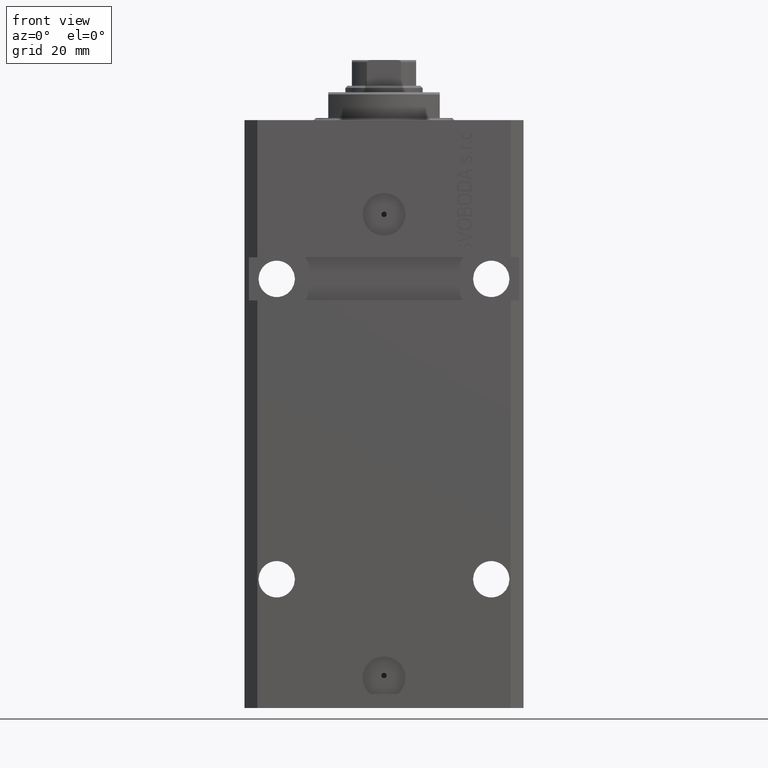
[diagram: clean part render]
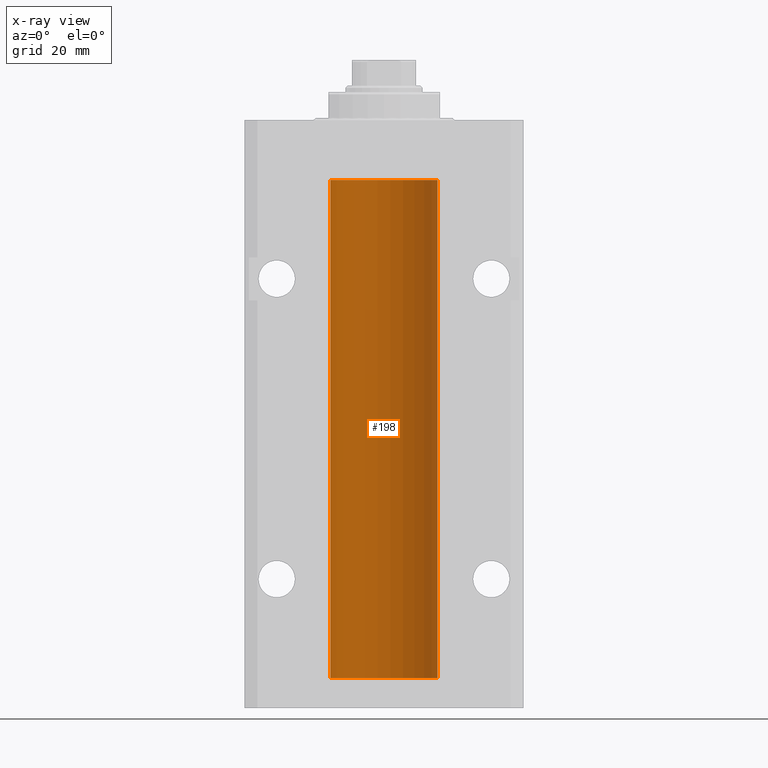
[diagram: x-ray — body ghosted, one internal face saturated and labeled with its STEP entity id]
A machine part, front view, then the same camera in x-ray: the body is ghosted and one INTERNAL B-rep face — a face not visible from any outside direction — is saturated and labeled: STEP entity #198.
In plain terms, the highlighted cylindrical surface (partial cylindrical patch) has radius 12.5 mm, axis along (0, 0, 1).
Its self-contained STEP definition (entity closure, byte-faithful):
#5 = CARTESIAN_POINT ( 'NONE',  ( 12.50000000000000000, -1.470318446642941360E-15, -22.62500000000000000 ) ) ;
#198 = ADVANCED_FACE ( 'NONE', ( #6030 ), #9700, .F. ) ;
#203 = CARTESIAN_POINT ( 'NONE',  ( -12.49915784441386890, 0.1636601911727947889, -21.39126818989430490 ) ) ;
#446 = CARTESIAN_POINT ( 'NONE',  ( 12.50000000000000000, 5.055633433180616021E-15, -125.6250000000000142 ) ) ;
#631 = CARTESIAN_POINT ( 'NONE',  ( 12.50000000000017941, 3.868073647803008074E-13, -124.3749999999964047 ) ) ;
#669 = VERTEX_POINT ( 'NONE', #446 ) ;
#1298 = CARTESIAN_POINT ( 'NONE',  ( 12.48436522214885969, 0.6250000000001448841, -22.16312747540307271 ) ) ;
#1752 = CARTESIAN_POINT ( 'NONE',  ( 12.50000000000000000, -1.470318446642941360E-15, -22.62500000000000000 ) ) ;
#2138 = DIRECTION ( 'NONE',  ( 1.000000000000000000, 0.000000000000000000, 0.000000000000000000 ) ) ;
#2431 = CARTESIAN_POINT ( 'NONE',  ( -12.48809959379011758, 0.5462151254764870956, -125.3146137048161677 ) ) ;
#2727 = LINE ( 'NONE', #41349, #6343 ) ;
#2816 = LINE ( 'NONE', #12716, #43009 ) ;
#2906 = CARTESIAN_POINT ( 'NONE',  ( 12.49012055744648997, 0.5002956126655976332, -21.61641710202404454 ) ) ;
#3228 = EDGE_CURVE ( 'NONE', #36668, #40952, #19614, .T. ) ;
#3335 = CARTESIAN_POINT ( 'NONE',  ( -12.48436376893640265, 0.6250290278979852010, -125.0813208282447135 ) ) ;
#3654 = CARTESIAN_POINT ( 'NONE',  ( -12.48520330846397819, 0.6088355886774127201, -22.16325431852561323 ) ) ;
#3757 = CARTESIAN_POINT ( 'NONE',  ( 12.48436522214846711, 0.6250000000078859141, -124.9999999999992326 ) ) ;
#3878 = LINE ( 'NONE', #21578, #33612 ) ;
#4104 = DIRECTION ( 'NONE',  ( -0.000000000000000000, -0.000000000000000000, 1.000000000000000000 ) ) ;
#4451 = DIRECTION ( 'NONE',  ( -0.000000000000000000, -0.000000000000000000, 1.000000000000000000 ) ) ;
#5886 = CARTESIAN_POINT ( 'NONE',  ( -12.48436813453758631, 0.6249418250771061611, -124.8366899679892441 ) ) ;
#6030 = FACE_OUTER_BOUND ( 'NONE', #15748, .T. ) ;
#6043 = ORIENTED_EDGE ( 'NONE', *, *, #42141, .T. ) ;
#6343 = VECTOR ( 'NONE', #34677, 1000.000000000000000 ) ;
#6797 = ORIENTED_EDGE ( 'NONE', *, *, #3228, .F. ) ;
#7234 = VECTOR ( 'NONE', #18365, 1000.000000000000000 ) ;
#7526 = CARTESIAN_POINT ( 'NONE',  ( 12.49631206032075781, 0.3252904079142953098, -124.4413970021492872 ) ) ;
#7787 = CARTESIAN_POINT ( 'NONE',  ( -12.49422197749724006, 0.3843754434364375916, -21.50047099568095277 ) ) ;
#8153 = CIRCLE ( 'NONE', #33840, 12.50000000000000000 ) ;
#8505 = DIRECTION ( 'NONE',  ( 1.000000000000000000, 0.000000000000000000, 0.000000000000000000 ) ) ;
#9359 = CARTESIAN_POINT ( 'NONE',  ( 12.48520578595314845, 0.6087855079133684955, -21.83656717509346024 ) ) ;
#9587 = CARTESIAN_POINT ( 'NONE',  ( 12.49631206032075958, 0.3252904079142808214, -21.44139700214925526 ) ) ;
#9700 = CYLINDRICAL_SURFACE ( 'NONE', #31765, 12.50000000000000000 ) ;
#9969 = DIRECTION ( 'NONE',  ( 1.000000000000000000, 0.000000000000000000, 0.000000000000000000 ) ) ;
#10468 = EDGE_CURVE ( 'NONE', #40208, #40952, #11261, .T. ) ;
#10977 = CARTESIAN_POINT ( 'NONE',  ( 12.48436522214887745, 0.6249999999996828093, -124.9184733946234758 ) ) ;
#11261 = CIRCLE ( 'NONE', #17103, 12.50000000000000000 ) ;
#11640 = CARTESIAN_POINT ( 'NONE',  ( 12.49625698805480667, 0.3151108292486967666, -22.54593695688170385 ) ) ;
#12715 = CARTESIAN_POINT ( 'NONE',  ( 12.49915742890631876, 0.1636982395582410321, -125.6087239784702518 ) ) ;
#12716 = CARTESIAN_POINT ( 'NONE',  ( -12.50000000000000000, 1.530808498934191521E-15, -130.0999999999999943 ) ) ;
#12933 = VERTEX_POINT ( 'NONE', #36155 ) ;
#13025 = CARTESIAN_POINT ( 'NONE',  ( 12.48436522214888100, 0.6249999999996762590, -21.91847339462350774 ) ) ;
#13835 = ORIENTED_EDGE ( 'NONE', *, *, #37960, .F. ) ;
#13882 = VERTEX_POINT ( 'NONE', #3757 ) ;
#14149 = VERTEX_POINT ( 'NONE', #18179 ) ;
#14499 = CARTESIAN_POINT ( 'NONE',  ( 12.48436522214846889, 0.6250000000078781426, -21.99999999999923261 ) ) ;
#14682 = CARTESIAN_POINT ( 'NONE',  ( -12.48436813453758454, 0.6249418250771192618, -21.83668996798922635 ) ) ;
#15641 = VERTEX_POINT ( 'NONE', #26888 ) ;
#15748 = EDGE_LOOP ( 'NONE', ( #19731, #25114, #44794, #45209, #16848, #45424, #41548, #37836, #41432, #31503, #6797, #6043, #13835, #40035 ) ) ;
#15928 = CARTESIAN_POINT ( 'NONE',  ( 12.50000000000000000, 5.055633433180616021E-15, -125.6250000000000142 ) ) ;
#16165 = CARTESIAN_POINT ( 'NONE',  ( -12.50000000000000000, 1.530808498934191521E-15, -130.0999999999999943 ) ) ;
#16789 = B_SPLINE_CURVE_WITH_KNOTS ( 'NONE', 3,
 ( #27466, #30924, #34153, #41504, #24251, #23794, #5886, #3335, #34834, #2431, #30693, #44752, #20342, #34379 ),
 .UNSPECIFIED., .F., .F.,
 ( 4, 2, 2, 2, 2, 2, 4 ),
 ( 3.496117753580553008E-18, 0.0002442924852390892100, 0.0004885849704781749505, 0.0009771699409563759219, 0.001221462426195476462, 0.001465754911434576785, 0.001954339881912777865 ),
 .UNSPECIFIED. ) ;
#16827 = DIRECTION ( 'NONE',  ( -0.000000000000000000, -0.000000000000000000, 1.000000000000000000 ) ) ;
#16848 = ORIENTED_EDGE ( 'NONE', *, *, #38914, .T. ) ;
#17103 = AXIS2_PLACEMENT_3D ( 'NONE', #27434, #41471, #9969 ) ;
#17761 = CARTESIAN_POINT ( 'NONE',  ( 12.50000000000017941, 3.868073565084946818E-13, -21.37499999999641176 ) ) ;
#18179 = CARTESIAN_POINT ( 'NONE',  ( -12.50000000000000000, 1.530808498934191521E-15, -130.0999999999999943 ) ) ;
#18365 = DIRECTION ( 'NONE',  ( -0.000000000000000000, -0.000000000000000000, 1.000000000000000000 ) ) ;
#18754 = CARTESIAN_POINT ( 'NONE',  ( 12.49915742890631876, 0.1636982395582437522, -22.60872397847025539 ) ) ;
#18945 = VERTEX_POINT ( 'NONE', #5 ) ;
#19114 = CARTESIAN_POINT ( 'NONE',  ( -12.50000000000000000, 1.530808498934191521E-15, -13.99999999999999822 ) ) ;
#19614 = LINE ( 'NONE', #16165, #28174 ) ;
#19731 = ORIENTED_EDGE ( 'NONE', *, *, #21381, .F. ) ;
#20342 = CARTESIAN_POINT ( 'NONE',  ( -12.49999999999999467, 0.1631761135151251485, -125.6249999999999005 ) ) ;
#21381 = EDGE_CURVE ( 'NONE', #14149, #34317, #2816, .T. ) ;
#21575 = CARTESIAN_POINT ( 'NONE',  ( -12.50000000000000000, -2.089494013101375120E-17, -21.37499999999999645 ) ) ;
#21578 = CARTESIAN_POINT ( 'NONE',  ( 12.50000000000000000, 0.000000000000000000, -130.0999999999999943 ) ) ;
#21801 = CARTESIAN_POINT ( 'NONE',  ( -12.50000000000000000, 0.08260426088729219685, -21.37500000000000000 ) ) ;
#22467 = EDGE_CURVE ( 'NONE', #15641, #18945, #2727, .T. ) ;
#23067 = CARTESIAN_POINT ( 'NONE',  ( 12.50000000000000000, 0.000000000000000000, -130.0999999999999943 ) ) ;
#23549 = EDGE_CURVE ( 'NONE', #32704, #23960, #27686, .T. ) ;
#23621 = B_SPLINE_CURVE_WITH_KNOTS ( 'NONE', 3,
 ( #21575, #21801, #203, #35393, #7787, #35165, #14682, #31923, #3654, #28239, #35839, #35618, #28696, #42281 ),
 .UNSPECIFIED., .F., .F.,
 ( 4, 2, 2, 2, 2, 2, 4 ),
 ( 2.030551168097110502E-20, 0.0002442924852390969078, 0.0004885849704781938157, 0.0009771699409563880650, 0.001221462426195485135, 0.001465754911434582423, 0.001954339881912776130 ),
 .UNSPECIFIED. ) ;
#23727 = CARTESIAN_POINT ( 'NONE',  ( 12.48436522214885613, 0.6250000000001550982, -125.1631274754030585 ) ) ;
#23794 = CARTESIAN_POINT ( 'NONE',  ( -12.48810268015257563, 0.5573155909661203777, -124.6734741009386909 ) ) ;
#23960 = VERTEX_POINT ( 'NONE', #17761 ) ;
#24251 = CARTESIAN_POINT ( 'NONE',  ( -12.49422197749723829, 0.3843754434364221040, -124.5004709956809705 ) ) ;
#24276 = CARTESIAN_POINT ( 'NONE',  ( 12.48436522214846889, 0.6250000000078781426, -21.99999999999923261 ) ) ;
#24987 = CARTESIAN_POINT ( 'NONE',  ( 12.48520578595315023, 0.6087855079133756009, -124.8365671750934780 ) ) ;
#25114 = ORIENTED_EDGE ( 'NONE', *, *, #34229, .F. ) ;
#26101 = CARTESIAN_POINT ( 'NONE',  ( 12.49421963472024366, 0.3844519291903583103, -22.49947303647044805 ) ) ;
#26416 = CARTESIAN_POINT ( 'NONE',  ( 0.000000000000000000, 0.000000000000000000, -130.0999999999999943 ) ) ;
#26426 = CARTESIAN_POINT ( 'NONE',  ( -12.50000000000000000, -1.890568805888175348E-14, -124.3750000000000000 ) ) ;
#26716 = CARTESIAN_POINT ( 'NONE',  ( 0.000000000000000000, 0.000000000000000000, -130.0999999999999943 ) ) ;
#26888 = CARTESIAN_POINT ( 'NONE',  ( 12.50000000000017941, 3.868073647803008074E-13, -124.3749999999964047 ) ) ;
#27041 = CARTESIAN_POINT ( 'NONE',  ( 12.50000000000017941, 3.868073565084946818E-13, -21.37499999999641176 ) ) ;
#27127 = CARTESIAN_POINT ( 'NONE',  ( 12.48810305280568222, 0.5461368461738498326, -124.6852546614267538 ) ) ;
#27434 = CARTESIAN_POINT ( 'NONE',  ( 0.000000000000000000, 0.000000000000000000, -13.99999999999999822 ) ) ;
#27466 = CARTESIAN_POINT ( 'NONE',  ( -12.50000000000000000, -1.890568805888175348E-14, -124.3750000000000000 ) ) ;
#27644 = VERTEX_POINT ( 'NONE', #32338 ) ;
#27686 = B_SPLINE_CURVE_WITH_KNOTS ( 'NONE', 3,
 ( #24276, #13025, #9359, #30490, #2906, #9587, #30718, #27041 ),
 .UNSPECIFIED., .F., .F.,
 ( 4, 2, 2, 4 ),
 ( 0.0009773924225142506875, 0.001221629287363794770, 0.001465866152213338852, 0.001954339881912434389 ),
 .UNSPECIFIED. ) ;
#28174 = VECTOR ( 'NONE', #42984, 1000.000000000000000 ) ;
#28239 = CARTESIAN_POINT ( 'NONE',  ( -12.48809959379011403, 0.5462151254764975317, -22.31461370481611795 ) ) ;
#28379 = B_SPLINE_CURVE_WITH_KNOTS ( 'NONE', 3,
 ( #1752, #36238, #18754, #11640, #26101, #32785, #1298, #42694 ),
 .UNSPECIFIED., .F., .F.,
 ( 4, 2, 2, 4 ),
 ( 2.576359803311334014E-18, 0.0002443481056285645150, 0.0004886962112571264279, 0.0009773924225142506875 ),
 .UNSPECIFIED. ) ;
#28433 = CARTESIAN_POINT ( 'NONE',  ( 12.48436522214846711, 0.6250000000078859141, -124.9999999999992326 ) ) ;
#28696 = CARTESIAN_POINT ( 'NONE',  ( -12.49999999999999289, 0.1631761135151241215, -22.62499999999984013 ) ) ;
#28935 = CARTESIAN_POINT ( 'NONE',  ( -12.50000000000000000, 1.530808498934191521E-15, -130.0999999999999943 ) ) ;
#29612 = EDGE_CURVE ( 'NONE', #23960, #40208, #39629, .T. ) ;
#30035 = B_SPLINE_CURVE_WITH_KNOTS ( 'NONE', 3,
 ( #15928, #36404, #12715, #44681, #41214, #30178, #23727, #31084 ),
 .UNSPECIFIED., .F., .F.,
 ( 4, 2, 2, 4 ),
 ( 4.913018323501965315E-18, 0.0002443481056285863075, 0.0004886962112571676276, 0.0009773924225142717210 ),
 .UNSPECIFIED. ) ;
#30178 = CARTESIAN_POINT ( 'NONE',  ( 12.48809900631782099, 0.5573988467445673001, -125.3264014793547290 ) ) ;
#30328 = EDGE_CURVE ( 'NONE', #32909, #34317, #16789, .T. ) ;
#30490 = CARTESIAN_POINT ( 'NONE',  ( 12.48810305280568222, 0.5461368461738448365, -21.68525466142676805 ) ) ;
#30693 = CARTESIAN_POINT ( 'NONE',  ( -12.49011732893843707, 0.5003763274120269777, -125.3834811128928806 ) ) ;
#30718 = CARTESIAN_POINT ( 'NONE',  ( 12.49999999999999112, 0.1631389616600879555, -21.37500000000019185 ) ) ;
#30845 = DIRECTION ( 'NONE',  ( -0.000000000000000000, -0.000000000000000000, 1.000000000000000000 ) ) ;
#30924 = CARTESIAN_POINT ( 'NONE',  ( -12.50000000000000178, 0.08260426088727608473, -124.3749999999999858 ) ) ;
#31084 = CARTESIAN_POINT ( 'NONE',  ( 12.48436522214846711, 0.6250000000078859141, -124.9999999999992326 ) ) ;
#31503 = ORIENTED_EDGE ( 'NONE', *, *, #10468, .T. ) ;
#31765 = AXIS2_PLACEMENT_3D ( 'NONE', #26716, #30845, #2138 ) ;
#31923 = CARTESIAN_POINT ( 'NONE',  ( -12.48436376893640443, 0.6250290278979917513, -22.08132082824473486 ) ) ;
#32338 = CARTESIAN_POINT ( 'NONE',  ( 12.50000000000000000, 0.000000000000000000, -130.0999999999999943 ) ) ;
#32704 = VERTEX_POINT ( 'NONE', #14499 ) ;
#32785 = CARTESIAN_POINT ( 'NONE',  ( 12.48809900631782099, 0.5573988467445639694, -22.32640147935474317 ) ) ;
#32909 = VERTEX_POINT ( 'NONE', #26426 ) ;
#33612 = VECTOR ( 'NONE', #4104, 1000.000000000000000 ) ;
#33840 = AXIS2_PLACEMENT_3D ( 'NONE', #26416, #37010, #8505 ) ;
#34153 = CARTESIAN_POINT ( 'NONE',  ( -12.49915784441387068, 0.1636601911727856851, -124.3912681898942765 ) ) ;
#34229 = EDGE_CURVE ( 'NONE', #27644, #14149, #8153, .T. ) ;
#34317 = VERTEX_POINT ( 'NONE', #44831 ) ;
#34379 = CARTESIAN_POINT ( 'NONE',  ( -12.50000000000017941, 3.883381307462307207E-13, -125.6250000000035953 ) ) ;
#34677 = DIRECTION ( 'NONE',  ( -0.000000000000000000, -0.000000000000000000, 1.000000000000000000 ) ) ;
#34834 = CARTESIAN_POINT ( 'NONE',  ( -12.48520330846398174, 0.6088355886774048376, -125.1632543185256310 ) ) ;
#35165 = CARTESIAN_POINT ( 'NONE',  ( -12.48810268015257563, 0.5573155909661349217, -21.67347410093867666 ) ) ;
#35393 = CARTESIAN_POINT ( 'NONE',  ( -12.49625855304193678, 0.3150454781038042329, -21.45402800297484802 ) ) ;
#35583 = CARTESIAN_POINT ( 'NONE',  ( 12.49999999999999467, 0.1631389616600898151, -124.3750000000002274 ) ) ;
#35618 = CARTESIAN_POINT ( 'NONE',  ( -12.49631005746706336, 0.3253680783018528255, -22.55856740465392463 ) ) ;
#35839 = CARTESIAN_POINT ( 'NONE',  ( -12.49011732893843529, 0.5003763274120274218, -22.38348111289287701 ) ) ;
#36155 = CARTESIAN_POINT ( 'NONE',  ( -12.50000000000017941, 3.883381646606358354E-13, -22.62500000000358824 ) ) ;
#36238 = CARTESIAN_POINT ( 'NONE',  ( 12.49999999999999822, 0.08262306818362555316, -22.62499999999997513 ) ) ;
#36404 = CARTESIAN_POINT ( 'NONE',  ( 12.50000000000000000, 0.08262306818362785688, -125.6249999999999858 ) ) ;
#36668 = VERTEX_POINT ( 'NONE', #38880 ) ;
#37010 = DIRECTION ( 'NONE',  ( 0.000000000000000000, 0.000000000000000000, 1.000000000000000000 ) ) ;
#37060 = EDGE_CURVE ( 'NONE', #27644, #669, #3878, .T. ) ;
#37836 = ORIENTED_EDGE ( 'NONE', *, *, #23549, .T. ) ;
#37960 = EDGE_CURVE ( 'NONE', #32909, #12933, #43664, .T. ) ;
#38186 = EDGE_CURVE ( 'NONE', #18945, #32704, #28379, .T. ) ;
#38844 = VECTOR ( 'NONE', #4451, 1000.000000000000000 ) ;
#38880 = CARTESIAN_POINT ( 'NONE',  ( -12.50000000000000000, -2.089494013101375120E-17, -21.37499999999999645 ) ) ;
#38914 = EDGE_CURVE ( 'NONE', #13882, #15641, #40899, .T. ) ;
#39027 = CARTESIAN_POINT ( 'NONE',  ( 12.49012055744648642, 0.5002956126656095126, -124.6164171020240445 ) ) ;
#39629 = LINE ( 'NONE', #23067, #38844 ) ;
#40035 = ORIENTED_EDGE ( 'NONE', *, *, #30328, .T. ) ;
#40208 = VERTEX_POINT ( 'NONE', #44081 ) ;
#40899 = B_SPLINE_CURVE_WITH_KNOTS ( 'NONE', 3,
 ( #28433, #10977, #24987, #27127, #39027, #7526, #35583, #631 ),
 .UNSPECIFIED., .F., .F.,
 ( 4, 2, 2, 4 ),
 ( 0.0009773924225142717210, 0.001221629287363824694, 0.001465866152213377450, 0.001954339881912483395 ),
 .UNSPECIFIED. ) ;
#40952 = VERTEX_POINT ( 'NONE', #19114 ) ;
#41214 = CARTESIAN_POINT ( 'NONE',  ( 12.49421963472024544, 0.3844519291903631952, -125.4994730364704907 ) ) ;
#41349 = CARTESIAN_POINT ( 'NONE',  ( 12.50000000000000000, 0.000000000000000000, -130.0999999999999943 ) ) ;
#41432 = ORIENTED_EDGE ( 'NONE', *, *, #29612, .T. ) ;
#41471 = DIRECTION ( 'NONE',  ( 0.000000000000000000, 0.000000000000000000, 1.000000000000000000 ) ) ;
#41504 = CARTESIAN_POINT ( 'NONE',  ( -12.49625855304193855, 0.3150454781037954621, -124.4540280029748658 ) ) ;
#41548 = ORIENTED_EDGE ( 'NONE', *, *, #38186, .T. ) ;
#42141 = EDGE_CURVE ( 'NONE', #36668, #12933, #23621, .T. ) ;
#42281 = CARTESIAN_POINT ( 'NONE',  ( -12.50000000000017941, 3.883381646606358354E-13, -22.62500000000358824 ) ) ;
#42694 = CARTESIAN_POINT ( 'NONE',  ( 12.48436522214846889, 0.6250000000078781426, -21.99999999999923261 ) ) ;
#42984 = DIRECTION ( 'NONE',  ( -0.000000000000000000, -0.000000000000000000, 1.000000000000000000 ) ) ;
#43009 = VECTOR ( 'NONE', #16827, 1000.000000000000000 ) ;
#43664 = LINE ( 'NONE', #28935, #7234 ) ;
#43763 = EDGE_CURVE ( 'NONE', #669, #13882, #30035, .T. ) ;
#44081 = CARTESIAN_POINT ( 'NONE',  ( 12.50000000000000000, 0.000000000000000000, -13.99999999999999822 ) ) ;
#44681 = CARTESIAN_POINT ( 'NONE',  ( 12.49625698805480845, 0.3151108292486959339, -125.5459369568817038 ) ) ;
#44752 = CARTESIAN_POINT ( 'NONE',  ( -12.49631005746706691, 0.3253680783018559897, -125.5585674046538998 ) ) ;
#44794 = ORIENTED_EDGE ( 'NONE', *, *, #37060, .T. ) ;
#44831 = CARTESIAN_POINT ( 'NONE',  ( -12.50000000000017941, 3.883381307462307207E-13, -125.6250000000035953 ) ) ;
#45209 = ORIENTED_EDGE ( 'NONE', *, *, #43763, .T. ) ;
#45424 = ORIENTED_EDGE ( 'NONE', *, *, #22467, .T. ) ;